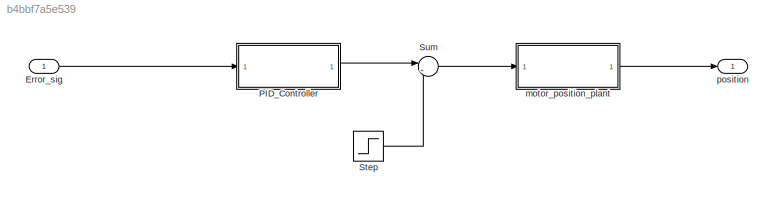
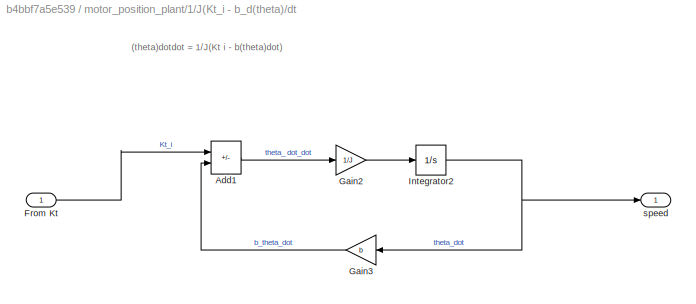
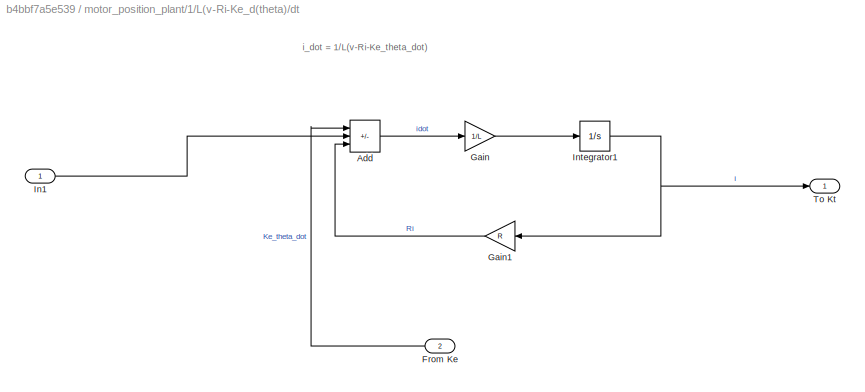
MODEL slx_b4bbf7a5e539
KIND model
CONFIG AbsTol = auto
CONFIG EnableMultiTasking = off
CONFIG FixedStep = auto
CONFIG MaxStep = auto
CONFIG MinStep = auto
CONFIG RelTol = 1e-3
CONFIG SampleTimeConstraint = Unconstrained
CONFIG Solver = VariableStepAuto
CONFIG SolverName = VariableStepAuto
CONFIG StartTime = 0.0
CONFIG StopTime = 10.0
BLOCK [Inport] Error_sig
  OutDataTypeStr = double
  PortDimensions = 1
  SampleTime = 0
  SamplingMode = Sample based
  SignalType = real
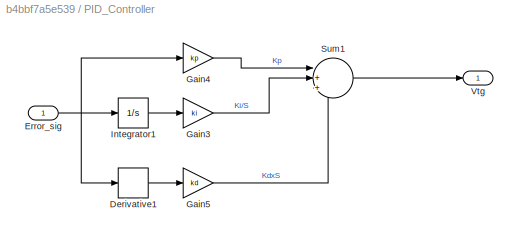
BLOCK [SubSystem] PID_Controller
  Ports = [1, 1]
  RequestExecContextInheritance = off
  TreatAsAtomicUnit = on
BLOCK [Derivative] PID_Controller/Derivative1
BLOCK [Inport] PID_Controller/Error_sig
BLOCK [Gain] PID_Controller/Gain3
  Gain = ki
BLOCK [Gain] PID_Controller/Gain4
  Gain = kp
BLOCK [Gain] PID_Controller/Gain5
  Gain = kd
BLOCK [Integrator] PID_Controller/Integrator1
  Ports = [1, 1]
BLOCK [Sum] PID_Controller/Sum1
  Inputs = |+++
  NameLocation = top
  Ports = [3, 1]
BLOCK [Outport] PID_Controller/Vtg
BLOCK [Step] Step
  Before = 0.03
  SampleTime = 0
  Time = 0
BLOCK [Sum] Sum
  Inputs = |++
  Ports = [2, 1]
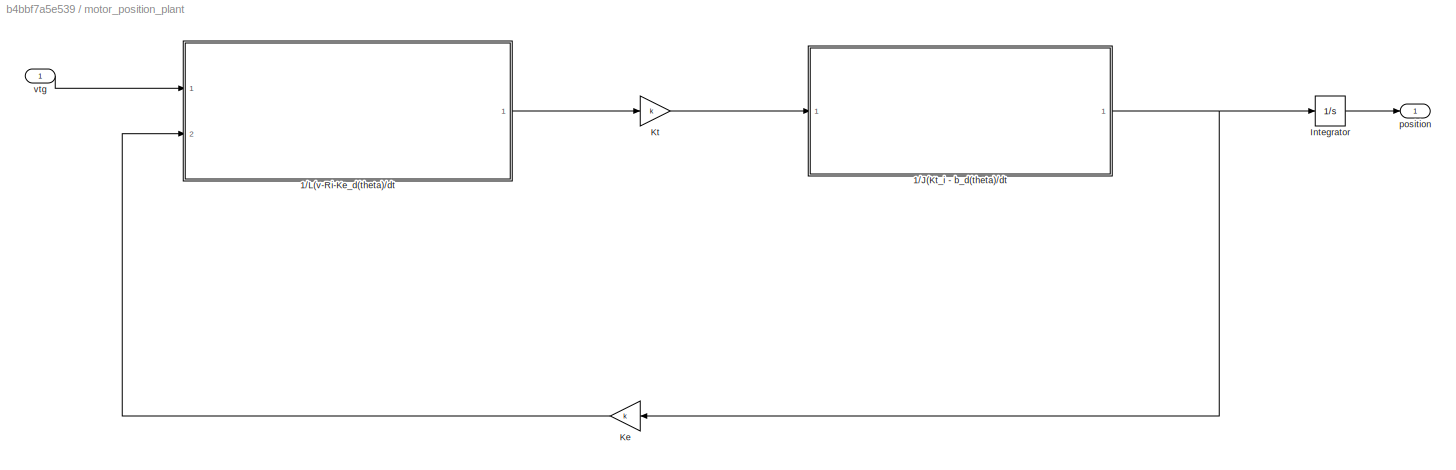
BLOCK [SubSystem] motor_position_plant
  Ports = [1, 1]
  RequestExecContextInheritance = off
  TreatAsAtomicUnit = on
BLOCK [SubSystem] motor_position_plant/1//J(Kt_i - b_d(theta)//dt
  Ports = [1, 1]
  RequestExecContextInheritance = off
BLOCK [Sum] motor_position_plant/1//J(Kt_i - b_d(theta)//dt/Add1
  IconShape = rectangular
  Inputs = +-
  Ports = [2, 1]
BLOCK [Inport] motor_position_plant/1//J(Kt_i - b_d(theta)//dt/From Kt
BLOCK [Gain] motor_position_plant/1//J(Kt_i - b_d(theta)//dt/Gain2
  Gain = 1/J
BLOCK [Gain] motor_position_plant/1//J(Kt_i - b_d(theta)//dt/Gain3
  Gain = b
  NameLocation = top
BLOCK [Integrator] motor_position_plant/1//J(Kt_i - b_d(theta)//dt/Integrator2
  Ports = [1, 1]
BLOCK [Outport] motor_position_plant/1//J(Kt_i - b_d(theta)//dt/speed
BLOCK [SubSystem] motor_position_plant/1//L(v-Ri-Ke_d(theta)//dt
  Ports = [2, 1]
  RequestExecContextInheritance = off
BLOCK [Sum] motor_position_plant/1//L(v-Ri-Ke_d(theta)//dt/Add
  IconShape = rectangular
  Inputs = -+-
  Ports = [3, 1]
BLOCK [Inport] motor_position_plant/1//L(v-Ri-Ke_d(theta)//dt/From Ke
  Port = 2
BLOCK [Gain] motor_position_plant/1//L(v-Ri-Ke_d(theta)//dt/Gain
  Gain = 1/L
BLOCK [Gain] motor_position_plant/1//L(v-Ri-Ke_d(theta)//dt/Gain1
  Gain = R
  NameLocation = top
BLOCK [Inport] motor_position_plant/1//L(v-Ri-Ke_d(theta)//dt/In1
BLOCK [Integrator] motor_position_plant/1//L(v-Ri-Ke_d(theta)//dt/Integrator1
  Ports = [1, 1]
BLOCK [Outport] motor_position_plant/1//L(v-Ri-Ke_d(theta)//dt/To Kt
BLOCK [Integrator] motor_position_plant/Integrator
  Ports = [1, 1]
BLOCK [Gain] motor_position_plant/Ke
  Gain = k
  NameLocation = top
BLOCK [Gain] motor_position_plant/Kt
  Gain = k
BLOCK [Outport] motor_position_plant/position
BLOCK [Inport] motor_position_plant/vtg
BLOCK [Outport] position
  OutDataTypeStr = double
  PortDimensions = 1
  SampleTime = 0
  SamplingMode = Sample based
  SignalType = real
ANNOTATION motor_position_plant/1//J(Kt_i - b_d(theta)//dt: (theta)dotdot = 1/J(Kt i - b(theta)dot)
ANNOTATION motor_position_plant/1//L(v-Ri-Ke_d(theta)//dt: i_dot = 1/L(v-Ri-Ke_theta_dot)
LINE Error_sig:1 -> PID_Controller:1
LINE PID_Controller/Derivative1:1 -> PID_Controller/Gain5:1
NET PID_Controller/Error_sig:1 -> PID_Controller/Derivative1:1, PID_Controller/Gain4:1, PID_Controller/Integrator1:1
LINE PID_Controller/Gain3:1 -> PID_Controller/Sum1:2
LINE PID_Controller/Gain4:1 -> PID_Controller/Sum1:1
LINE PID_Controller/Gain5:1 -> PID_Controller/Sum1:3
LINE PID_Controller/Integrator1:1 -> PID_Controller/Gain3:1
LINE PID_Controller/Sum1:1 -> PID_Controller/Vtg:1
LINE PID_Controller:1 -> Sum:1
LINE Step:1 -> Sum:2
LINE Sum:1 -> motor_position_plant:1
LINE motor_position_plant/1//J(Kt_i - b_d(theta)//dt/Add1:1 -> motor_position_plant/1//J(Kt_i - b_d(theta)//dt/Gain2:1
LINE motor_position_plant/1//J(Kt_i - b_d(theta)//dt/From Kt:1 -> motor_position_plant/1//J(Kt_i - b_d(theta)//dt/Add1:1
LINE motor_position_plant/1//J(Kt_i - b_d(theta)//dt/Gain2:1 -> motor_position_plant/1//J(Kt_i - b_d(theta)//dt/Integrator2:1
LINE motor_position_plant/1//J(Kt_i - b_d(theta)//dt/Gain3:1 -> motor_position_plant/1//J(Kt_i - b_d(theta)//dt/Add1:2
NET motor_position_plant/1//J(Kt_i - b_d(theta)//dt/Integrator2:1 -> motor_position_plant/1//J(Kt_i - b_d(theta)//dt/Gain3:1, motor_position_plant/1//J(Kt_i - b_d(theta)//dt/speed:1
NET motor_position_plant/1//J(Kt_i - b_d(theta)//dt:1 -> motor_position_plant/Integrator:1, motor_position_plant/Ke:1
LINE motor_position_plant/1//L(v-Ri-Ke_d(theta)//dt/Add:1 -> motor_position_plant/1//L(v-Ri-Ke_d(theta)//dt/Gain:1
LINE motor_position_plant/1//L(v-Ri-Ke_d(theta)//dt/From Ke:1 -> motor_position_plant/1//L(v-Ri-Ke_d(theta)//dt/Add:1
LINE motor_position_plant/1//L(v-Ri-Ke_d(theta)//dt/Gain1:1 -> motor_position_plant/1//L(v-Ri-Ke_d(theta)//dt/Add:3
LINE motor_position_plant/1//L(v-Ri-Ke_d(theta)//dt/Gain:1 -> motor_position_plant/1//L(v-Ri-Ke_d(theta)//dt/Integrator1:1
LINE motor_position_plant/1//L(v-Ri-Ke_d(theta)//dt/In1:1 -> motor_position_plant/1//L(v-Ri-Ke_d(theta)//dt/Add:2
NET motor_position_plant/1//L(v-Ri-Ke_d(theta)//dt/Integrator1:1 -> motor_position_plant/1//L(v-Ri-Ke_d(theta)//dt/Gain1:1, motor_position_plant/1//L(v-Ri-Ke_d(theta)//dt/To Kt:1
LINE motor_position_plant/1//L(v-Ri-Ke_d(theta)//dt:1 -> motor_position_plant/Kt:1
LINE motor_position_plant/Integrator:1 -> motor_position_plant/position:1
LINE motor_position_plant/Ke:1 -> motor_position_plant/1//L(v-Ri-Ke_d(theta)//dt:2
LINE motor_position_plant/Kt:1 -> motor_position_plant/1//J(Kt_i - b_d(theta)//dt:1
LINE motor_position_plant/vtg:1 -> motor_position_plant/1//L(v-Ri-Ke_d(theta)//dt:1
LINE motor_position_plant:1 -> position:1
note: NET lines group one-source signal fan-out (src -> all destinations, sorted); 1:1 wires keep LINE
